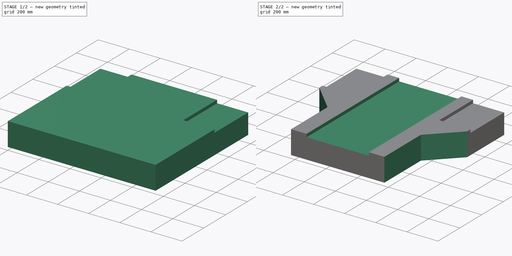
[diagram: build sequence overview — one tinted view per stage of 2, left to right]
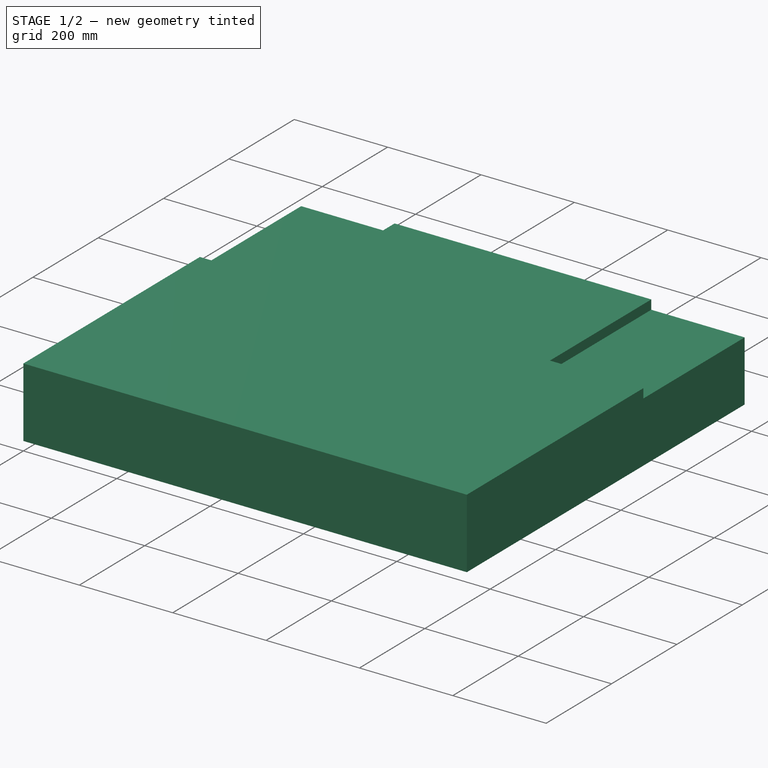
[diagram: stage 1 of 2 — iso view after this stage's code; geometry added in this stage tinted green]
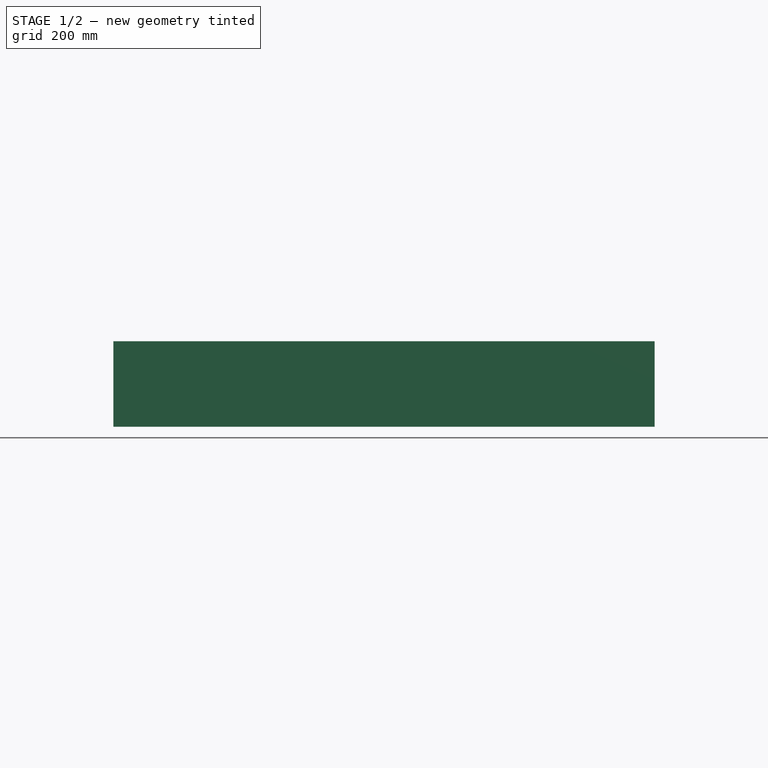
[diagram: stage 1 of 2 — front view after this stage's code; geometry added in this stage tinted green]
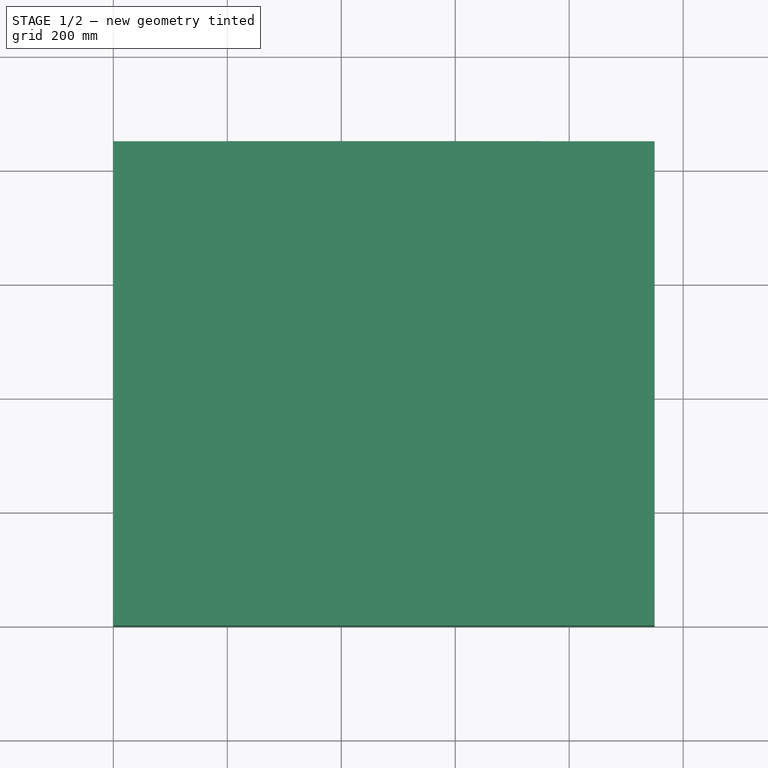
[diagram: stage 1 of 2 — top view after this stage's code; geometry added in this stage tinted green]
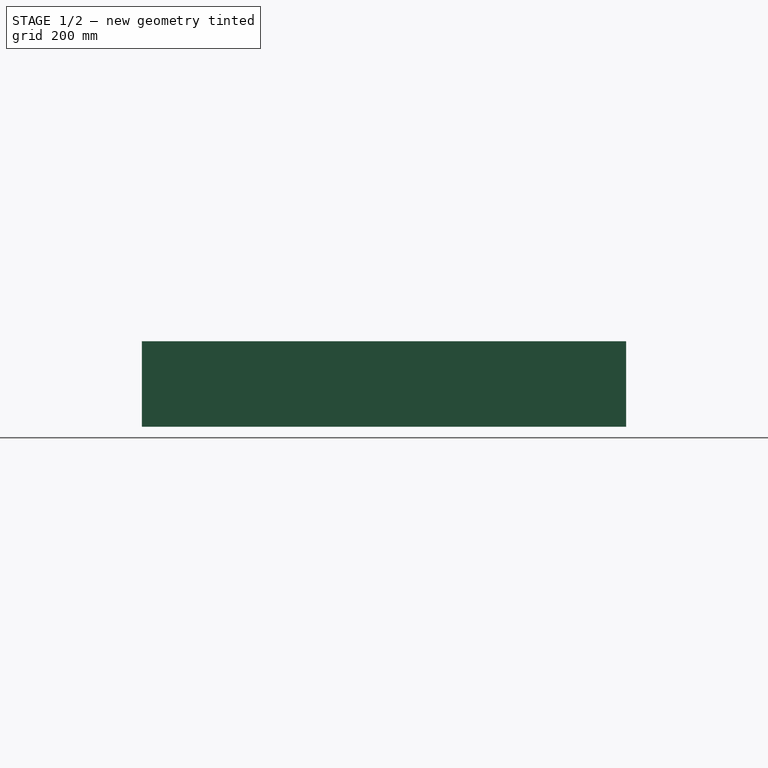
[diagram: stage 1 of 2 — right view after this stage's code; geometry added in this stage tinted green]
FCSTD DOCUMENT  (FreeCAD 1.0R39319 (Git))
Label: base
License: All rights reserved
LicenseURL: https://en.wikipedia.org/wiki/All_rights_reserved
objects: Sketcher::SketchObject×4, PartDesign::Pocket×3, PartDesign::Pad×1, PartDesign::Body×1
note: 21 computed .brp shape members not serialized (recipe doc carries the construction recipe); baked Part::Feature solids carry a one-line shape summary decoded from their .brp

FEATURE [Sketcher::SketchObject] Sketch
  ArcFitTolerance = 1e-06
  AttachmentSupport = -> [XY_Plane]
  FullyConstrained = true
  MakeInternals = false
  MapMode = 5
  sketch-geometry (4):
    g0: LineSegment StartX=0 StartY=0 StartZ=0 EndX=950 EndY=0 EndZ=0
    g1: LineSegment StartX=950 StartY=0 StartZ=0 EndX=950 EndY=850 EndZ=0
    g2: LineSegment StartX=950 StartY=850 StartZ=0 EndX=0 EndY=850 EndZ=0
    g3: LineSegment StartX=0 StartY=850 StartZ=0 EndX=0 EndY=0 EndZ=0
  constraints (11):
    c: Coincident(g0,g1)
    c: Coincident(g1,g2)
    c: Coincident(g2,g3)
    c: Coincident(g3,g0)
    c: Horizontal(g0)
    c: Horizontal(g2)
    c: Vertical(g1)
    c: Vertical(g3)
    c: Distance(g1,g3) = 950
    c: Coincident(g0,g-1)
    c: DistanceY(g3,g3) = 850
FEATURE [PartDesign::Pad] Pad
  Direction = (0,0,1)
  Length = 150
  Length2 = 10
  Profile = -> Sketch
  ReferenceAxis = -> Sketch [N_Axis]
  Refine = true
  Suppressed = false
  Type = 0
FEATURE [Sketcher::SketchObject] Sketch002
  ArcFitTolerance = 1e-06
  AttachmentSupport = -> [Pad]
  ExternalGeometry = -> [Pad]
  FullyConstrained = true
  MakeInternals = false
  MapMode = 5
  Placement = pos=(0,0,150) rot=(0,0,1;0rad)
  sketch-geometry (8):
    g0: LineSegment StartX=0 StartY=850 StartZ=0 EndX=0 EndY=540 EndZ=0
    g1: LineSegment StartX=0 StartY=540 StartZ=0 EndX=200 EndY=540 EndZ=0
    g2: LineSegment StartX=200 StartY=540 StartZ=0 EndX=200 EndY=850 EndZ=0
    g3: LineSegment StartX=200 StartY=850 StartZ=0 EndX=0 EndY=850 EndZ=0
    g4: LineSegment StartX=950 StartY=850 StartZ=0 EndX=750 EndY=850 EndZ=0
    g5: LineSegment StartX=750 StartY=850 StartZ=0 EndX=750 EndY=540 EndZ=0
    g6: LineSegment StartX=750 StartY=540 StartZ=0 EndX=950 EndY=540 EndZ=0
    g7: LineSegment StartX=950 StartY=540 StartZ=0 EndX=950 EndY=850 EndZ=0
  constraints (24):
    c: Coincident(g0,g1)
    c: Coincident(g1,g2)
    c: Coincident(g2,g3)
    c: Coincident(g3,g0)
    c: Vertical(g0)
    c: Vertical(g2)
    c: Horizontal(g1)
    c: Horizontal(g3)
    c: Distance(g0,g2) = 200
    c: Distance(g1,g3) = 310
    c: PointOnObject(g0,g-4)
    c: Coincident(g4,g5)
    c: Coincident(g5,g6)
    c: Coincident(g6,g7)
    c: Coincident(g7,g4)
    c: Horizontal(g4)
    c: Horizontal(g6)
    c: Vertical(g5)
    c: Vertical(g7)
    c: PointOnObject(g4,g-5)
    c: Equal(g3,g4)
    c: Equal(g5,g2)
    c: PointOnObject(g2,g4)
    c: Distance(g1,g-1) = 540
FEATURE [PartDesign::Pocket] Pocket
  BaseFeature = -> Pad
  Direction = (0,0,-1)
  Length = 20
  Length2 = 5
  Profile = -> Sketch002
  ReferenceAxis = -> Sketch002 [N_Axis]
  Refine = true
  Suppressed = false
  Type = 0
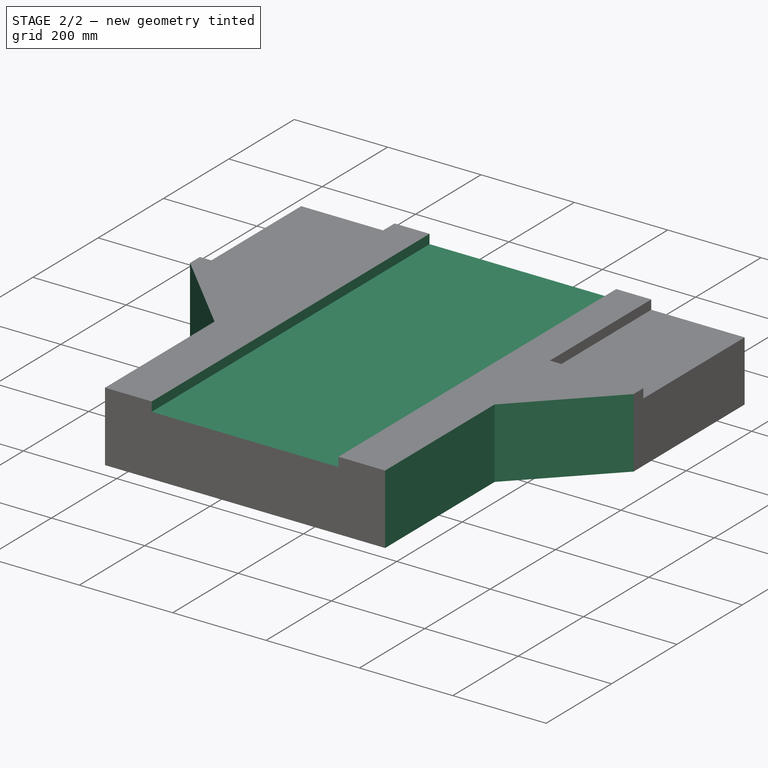
[diagram: stage 2 of 2 — iso view after this stage's code; geometry added in this stage tinted green]
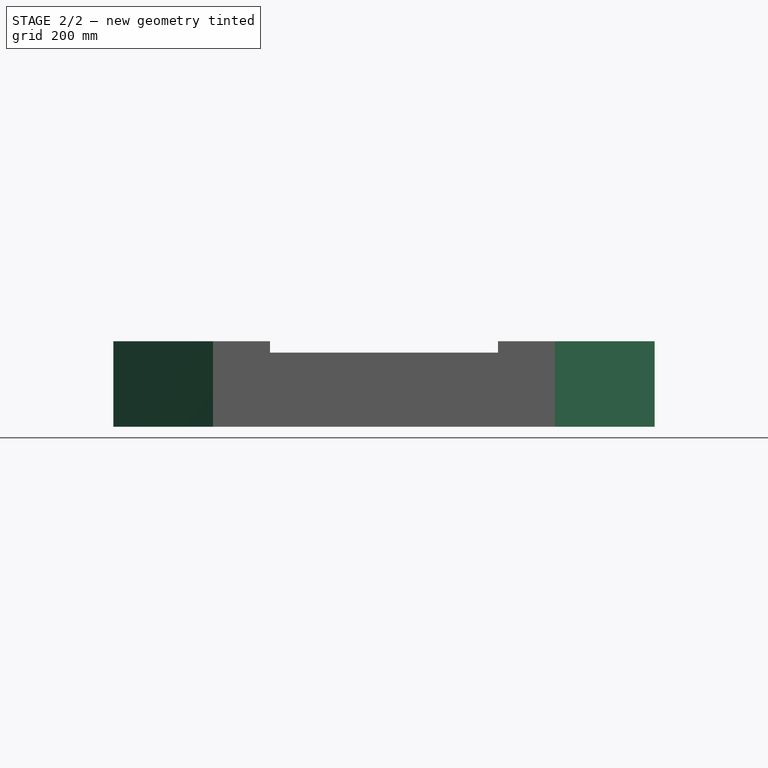
[diagram: stage 2 of 2 — front view after this stage's code; geometry added in this stage tinted green]
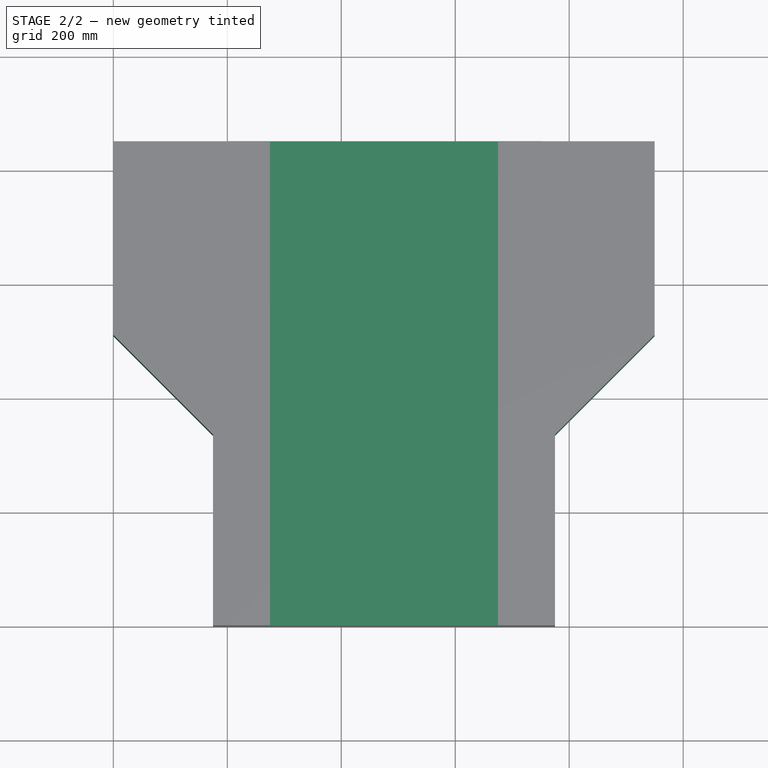
[diagram: stage 2 of 2 — top view after this stage's code; geometry added in this stage tinted green]
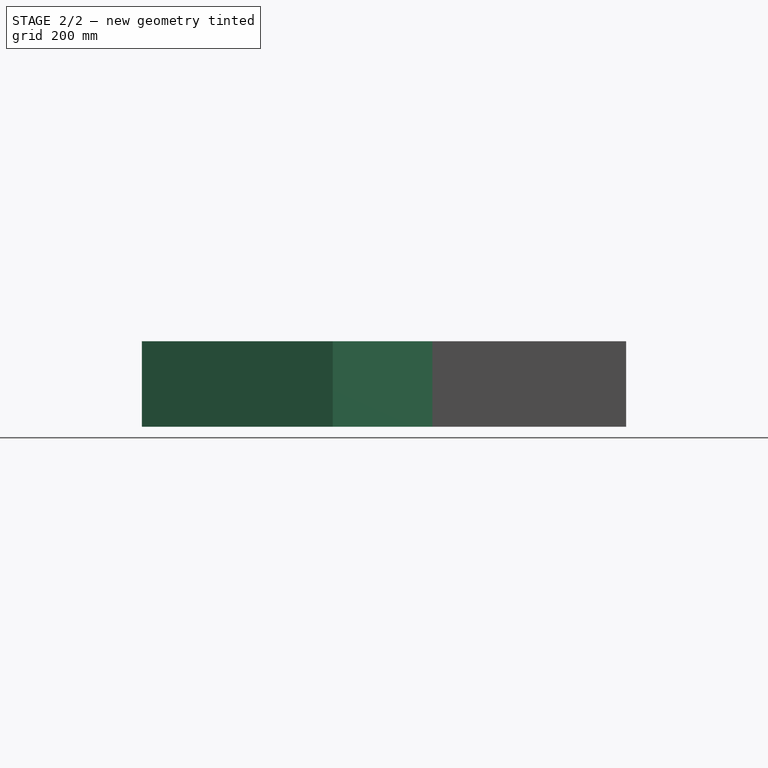
[diagram: stage 2 of 2 — right view after this stage's code; geometry added in this stage tinted green]
FEATURE [Sketcher::SketchObject] Sketch003
  ArcFitTolerance = 1e-06
  AttachmentSupport = -> [Pocket]
  ExternalGeometry = -> [Pocket]
  FullyConstrained = false
  MakeInternals = false
  MapMode = 5
  Placement = pos=(0,0,150) rot=(0,0,1;0rad)
  sketch-geometry (6):
    g0: LineSegment StartX=275 StartY=850 StartZ=0 EndX=275 EndY=0 EndZ=0
    g1: LineSegment StartX=275 StartY=0 StartZ=0 EndX=675 EndY=0 EndZ=0
    g2: LineSegment StartX=675 StartY=0 StartZ=0 EndX=675 EndY=850 EndZ=0
    g3: LineSegment StartX=675 StartY=850 StartZ=0 EndX=275 EndY=850 EndZ=0
    g4: LineSegment [constr] StartX=200 StartY=1130.23 StartZ=0 EndX=275 EndY=1130.23 EndZ=0
    g5: LineSegment [constr] StartX=675 StartY=1135.2 StartZ=0 EndX=750 EndY=1135.2 EndZ=0
  constraints (18):
    c: Coincident(g0,g1)
    c: Coincident(g1,g2)
    c: Coincident(g2,g3)
    c: Coincident(g3,g0)
    c: Vertical(g0)
    c: Vertical(g2)
    c: Horizontal(g1)
    c: Horizontal(g3)
    c: PointOnObject(g0,g-3)
    c: PointOnObject(g1,g-4)
    c: PointOnObject(g4,g-6)
    c: PointOnObject(g4,g0)
    c: Horizontal(g4)
    c: PointOnObject(g5,g2)
    c: PointOnObject(g5,g-5)
    c: Horizontal(g5)
    c: Equal(g4,g5)
    c: DistanceX(g3,g3) = 400
FEATURE [PartDesign::Pocket] Pocket001
  BaseFeature = -> Pocket
  Direction = (0,0,-1)
  Length = 20
  Length2 = 5
  Profile = -> Sketch003
  ReferenceAxis = -> Sketch003 [N_Axis]
  Refine = true
  Suppressed = false
  Type = 0
FEATURE [Sketcher::SketchObject] Sketch004
  ArcFitTolerance = 1e-06
  AttachmentSupport = -> [Pocket001]
  ExternalGeometry = -> [Pocket001]
  FullyConstrained = false
  MakeInternals = false
  MapMode = 5
  Placement = pos=(0,0,150) rot=(0,0,1;0rad)
  sketch-geometry (10):
    g0: LineSegment StartX=0 StartY=510 StartZ=0 EndX=175 EndY=335 EndZ=0
    g1: LineSegment StartX=175 StartY=335 StartZ=0 EndX=175 EndY=0 EndZ=0
    g2: LineSegment StartX=950 StartY=510 StartZ=0 EndX=775 EndY=335 EndZ=0
    g3: LineSegment StartX=775 StartY=335 StartZ=0 EndX=775 EndY=0 EndZ=0
    g4: LineSegment [constr] StartX=175 StartY=560.793 StartZ=0 EndX=275 EndY=560.793 EndZ=0
    g5: LineSegment [constr] StartX=675 StartY=550.605 StartZ=0 EndX=775 EndY=550.605 EndZ=0
    g6: LineSegment StartX=0 StartY=510 StartZ=0 EndX=0 EndY=0 EndZ=0
    g7: LineSegment StartX=0 StartY=0 StartZ=0 EndX=175 EndY=0 EndZ=0
    g8: LineSegment StartX=775 StartY=0 StartZ=0 EndX=950 EndY=0 EndZ=0
    g9: LineSegment StartX=950 StartY=0 StartZ=0 EndX=950 EndY=510 EndZ=0
  constraints (28):
    c: PointOnObject(g0,g-6)
    c: Coincident(g1,g0)
    c: PointOnObject(g1,g-5)
    c: Vertical(g1)
    c: PointOnObject(g2,g-4)
    c: Coincident(g3,g2)
    c: PointOnObject(g3,g-3)
    c: Vertical(g3)
    c: PointOnObject(g4,g1)
    c: PointOnObject(g4,g-7)
    c: Horizontal(g4)
    c: PointOnObject(g5,g-8)
    c: PointOnObject(g5,g3)
    c: Horizontal(g5)
    c: Equal(g5,g4)
    c: Distance(g4,g4) = 100
    c: Angle(g0,g1) = 2.35619
    c: Angle(g3,g2) = 2.35619
    c: Equal(g1,g3)
    c: Coincident(g6,g0)
    c: Coincident(g6,g-1)
    c: Coincident(g7,g6)
    c: Coincident(g7,g1)
    c: Coincident(g8,g3)
    c: Coincident(g8,g-4)
    c: Coincident(g9,g8)
    c: Coincident(g9,g2)
    c: Distance(g0,g-9) = 30
FEATURE [PartDesign::Pocket] Pocket002
  BaseFeature = -> Pocket001
  Direction = (0,0,-1)
  Length = 5
  Length2 = 5
  Profile = -> Sketch004
  ReferenceAxis = -> Sketch004 [N_Axis]
  Refine = true
  Suppressed = false
  Type = 1
FEATURE [PartDesign::Body] Body
  AllowCompound = false
  Group = -> [Sketch,Pad,Sketch002,Pocket,Sketch003,Pocket001,Sketch004,Pocket002]
  Origin = -> Origin
  Tip = -> Pocket002
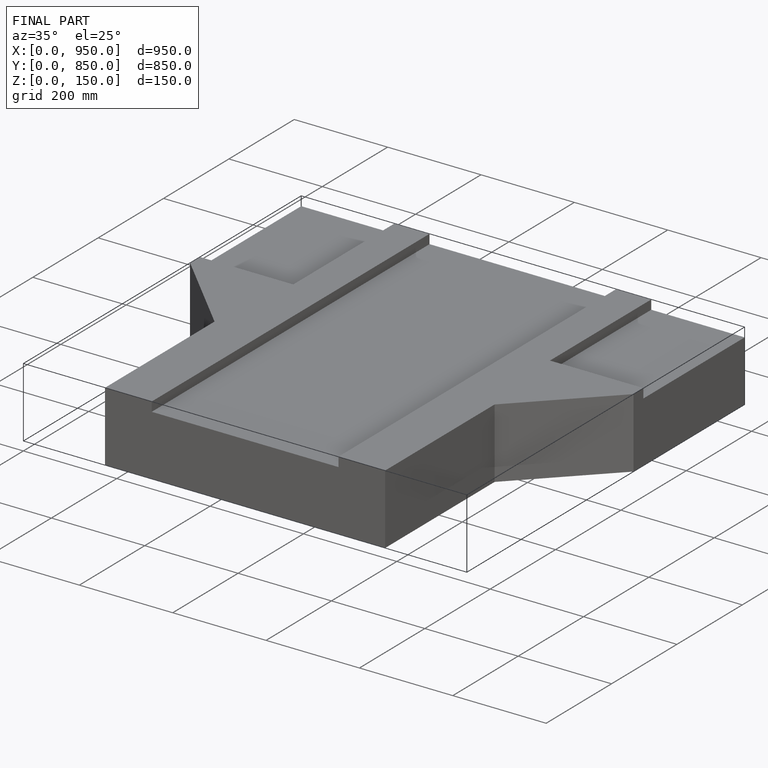
[diagram: finished part — iso view with bounding-box wireframe]
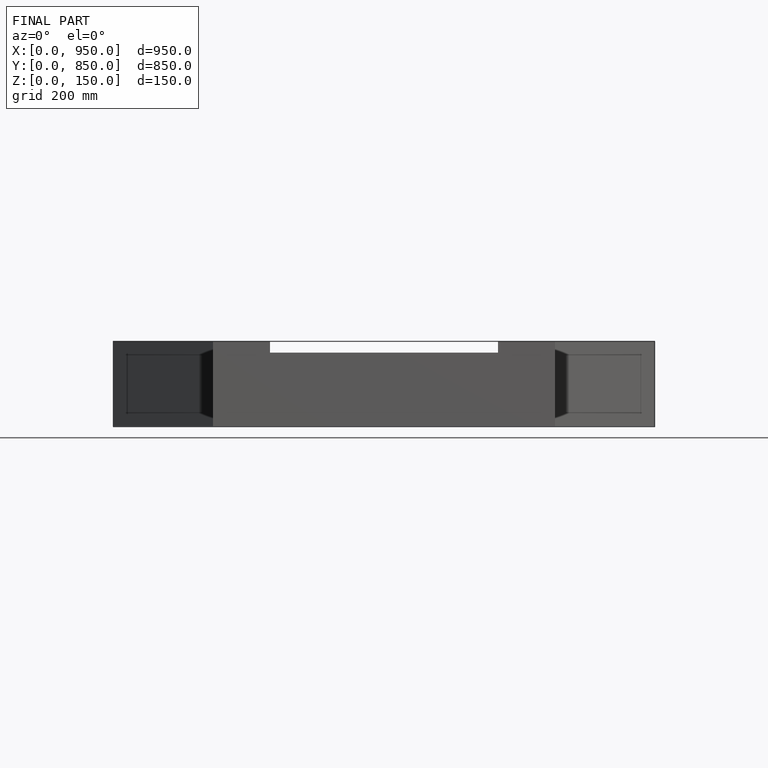
[diagram: finished part — front view with bounding-box wireframe]
